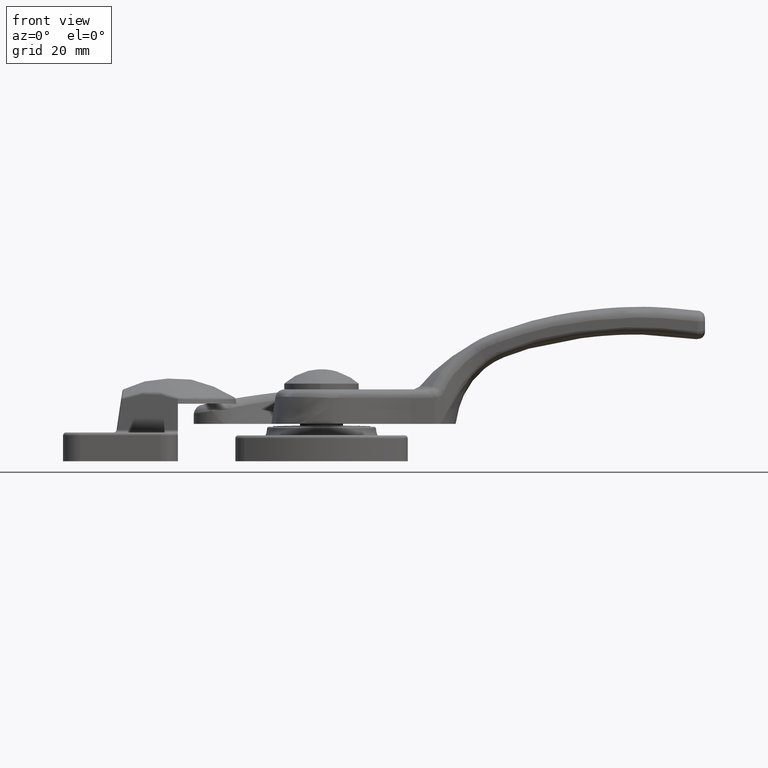
[diagram: clean part render]
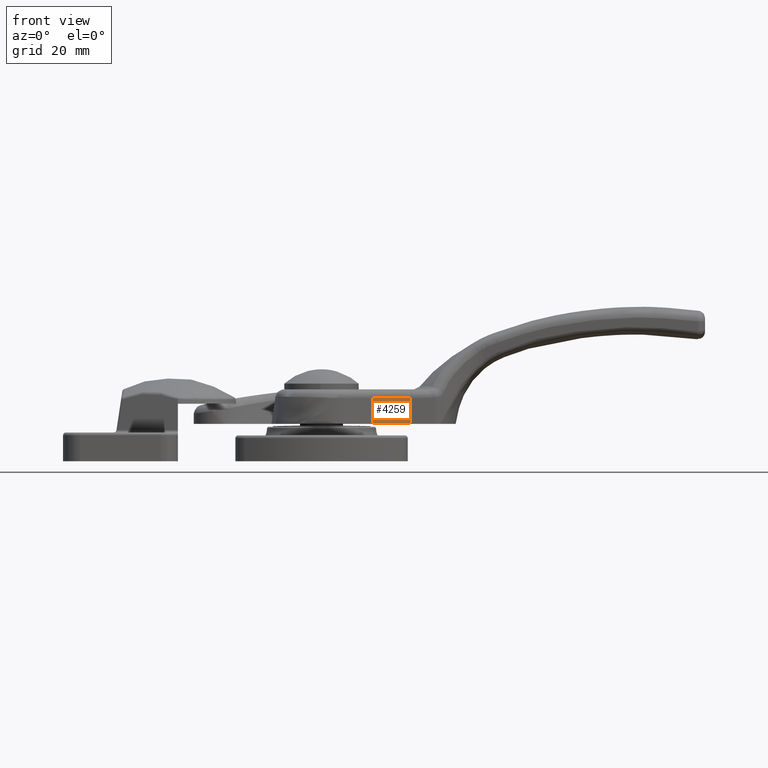
[diagram: same view with one face highlighted and labeled with its STEP entity id]
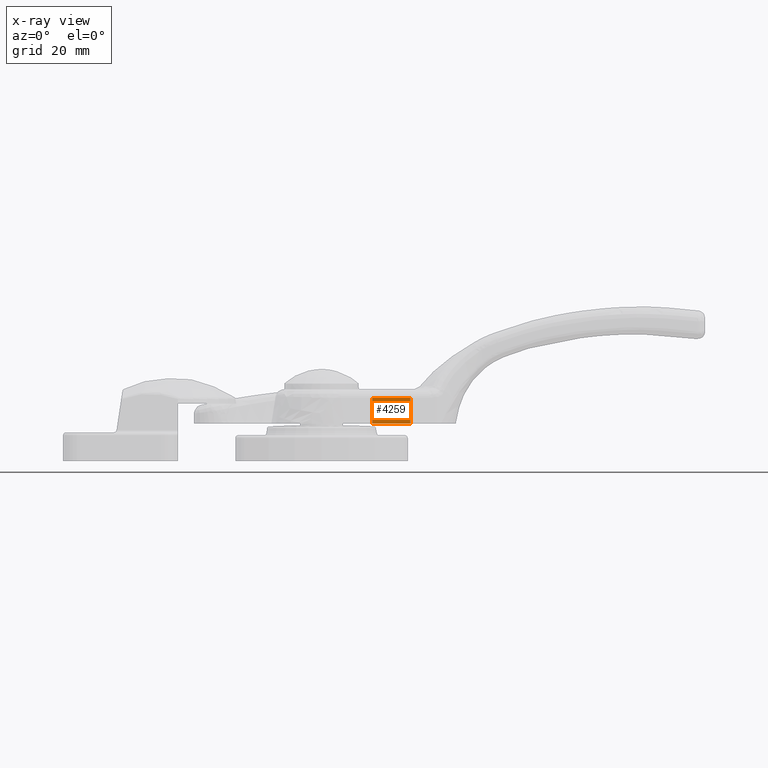
[diagram: x-ray of the same camera — body ghosted, the highlighted face saturated]
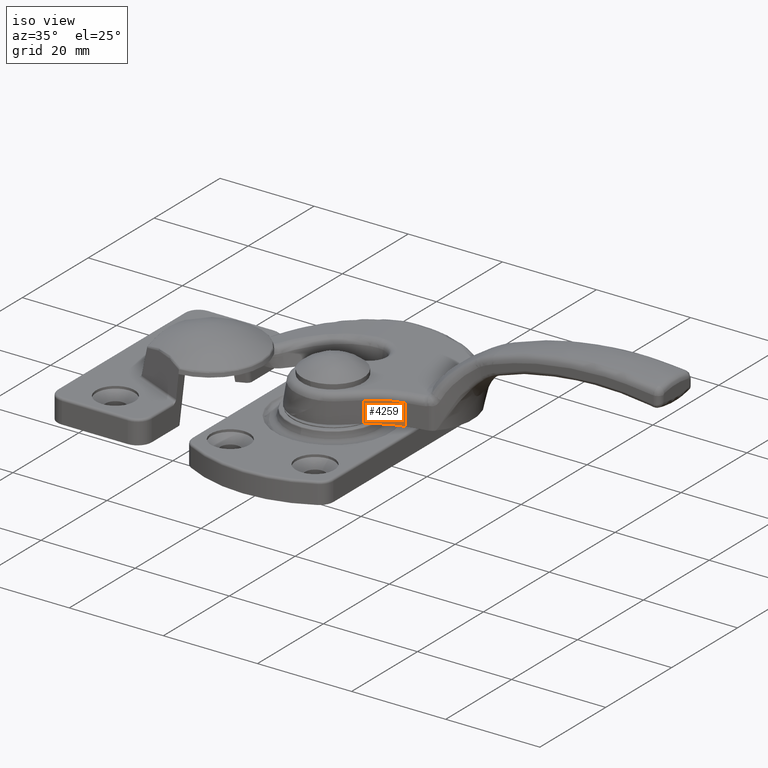
[diagram: same view with one face highlighted and labeled with its STEP entity id]
A machine part, front view. The second image highlights one B-rep face of the part: STEP entity #4259.
The next image is the same camera in x-ray: the body ghosted, the highlighted face saturated — about 0% of this face is hidden behind the body in this view.
A second angle (iso view) of the same face is appended — the face is thin or edge-on in the first view.
In plain terms, the highlighted cylindrical surface (partial cylindrical patch) has radius 15 mm, axis along (0, -0, 1).
Its self-contained STEP definition (entity closure, byte-faithful):
#647=LINE('',#9283,#819);
#649=LINE('',#9287,#821);
#819=VECTOR('',#5783,4.49999977121523);
#821=VECTOR('',#5787,4.50000000000015);
#913=CYLINDRICAL_SURFACE('',#4742,15.000000001);
#1166=FACE_OUTER_BOUND('',#1483,.T.);
#1483=EDGE_LOOP('',(#3657,#3658,#3659,#3660));
#1765=CIRCLE('',#4716,15.000000001);
#1777=CIRCLE('',#4743,15.000000001);
#2106=VERTEX_POINT('',#8443);
#2107=VERTEX_POINT('',#8445);
#2141=VERTEX_POINT('',#9282);
#2142=VERTEX_POINT('',#9286);
#2621=EDGE_CURVE('',#2106,#2107,#1765,.T.);
#2668=EDGE_CURVE('',#2141,#2107,#647,.T.);
#2670=EDGE_CURVE('',#2106,#2142,#649,.T.);
#2671=EDGE_CURVE('',#2142,#2141,#1777,.T.);
#3657=ORIENTED_EDGE('',*,*,#2668,.T.);
#3658=ORIENTED_EDGE('',*,*,#2621,.F.);
#3659=ORIENTED_EDGE('',*,*,#2670,.T.);
#3660=ORIENTED_EDGE('',*,*,#2671,.T.);
#4259=ADVANCED_FACE('',(#1166),#913,.F.);
#4716=AXIS2_PLACEMENT_3D('',#8446,#5716,#5717);
#4742=AXIS2_PLACEMENT_3D('',#9285,#5785,#5786);
#4743=AXIS2_PLACEMENT_3D('',#9288,#5788,#5789);
#5716=DIRECTION('center_axis',(0.,0.,1.));
#5717=DIRECTION('ref_axis',(1.,0.,0.));
#5783=DIRECTION('',(0.,0.,-1.));
#5785=DIRECTION('center_axis',(0.,0.,1.));
#5786=DIRECTION('ref_axis',(1.,0.,0.));
#5787=DIRECTION('',(0.,0.,1.));
#5788=DIRECTION('center_axis',(0.,0.,1.));
#5789=DIRECTION('ref_axis',(1.,0.,0.));
#8443=CARTESIAN_POINT('',(-8.94627503264869,11.9660743966979,1.85037170770859E-16));
#8445=CARTESIAN_POINT('',(-12.2312229806712,18.5751770028027,0.));
#8446=CARTESIAN_POINT('Origin',(-23.608226884,8.799504022,0.));
#9282=CARTESIAN_POINT('',(-12.2312229804245,18.5751770025184,4.49999977121523));
#9283=CARTESIAN_POINT('',(-12.2312229803093,18.575177002622,2.25));
#9285=CARTESIAN_POINT('Origin',(-23.608226884,8.799504022,4.617763081832));
#9286=CARTESIAN_POINT('',(-8.94627468671749,11.9660727948096,4.50000000000015));
#9287=CARTESIAN_POINT('',(-8.94627503285887,11.9660743977882,4.617763081832));
#9288=CARTESIAN_POINT('Origin',(-23.608226884,8.799504022,4.50000000000007));